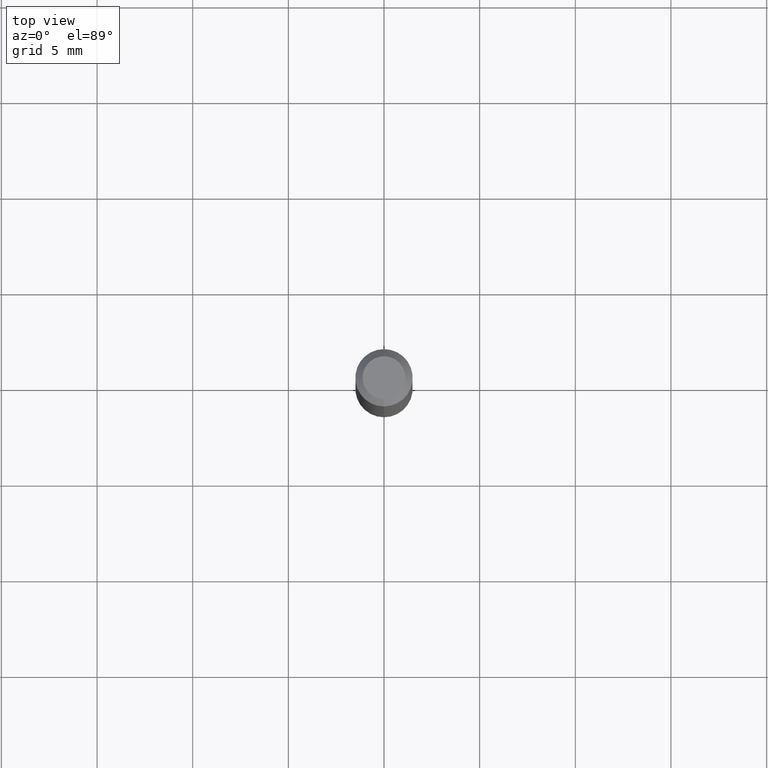
[diagram: clean part render]
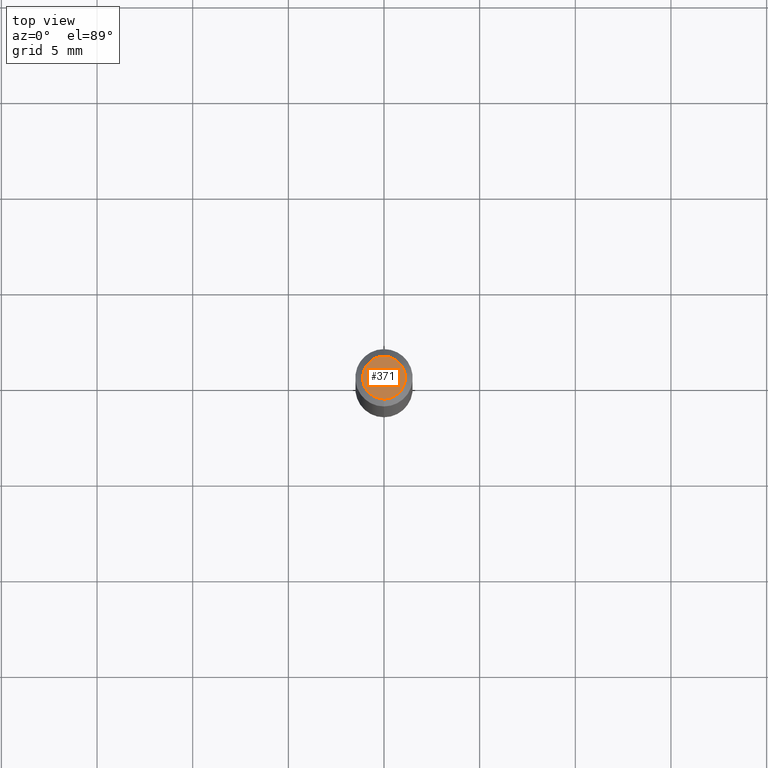
[diagram: same view with one face highlighted and labeled with its STEP entity id]
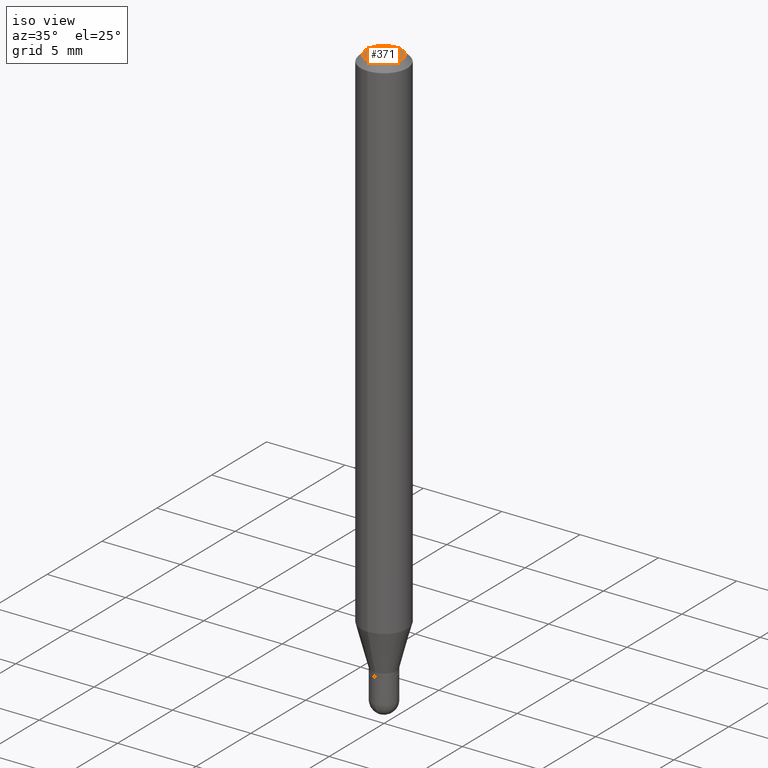
[diagram: same view with one face highlighted and labeled with its STEP entity id]
A machine part, top view. The second image highlights one B-rep face of the part: STEP entity #371.
A second angle (iso view) of the same face is appended — the face is thin or edge-on in the first view.
In plain terms, the highlighted planar face has unit normal (0, -0, -1).
Its self-contained STEP definition (entity closure, byte-faithful):
#28 = AXIS2_PLACEMENT_3D ( 'NONE', #284, #436, #493 ) ;
#30 = CARTESIAN_POINT ( 'NONE',  ( 3.599717260347271507E-16, 0.04404999999999999888, -1.776619958574267450E-16 ) ) ;
#41 = DIRECTION ( 'NONE',  ( -6.982962677686265133E-15, -1.000000000000000000, 3.491440589811561722E-15 ) ) ;
#90 = DIRECTION ( 'NONE',  ( -2.445497261081806566E-29, 3.491440589811561722E-15, 1.000000000000000000 ) ) ;
#113 = DIRECTION ( 'NONE',  ( 6.982962677686265922E-15, 1.000000000000000000, -3.491440589811561722E-15 ) ) ;
#159 = CIRCLE ( 'NONE', #339, 0.04404999999999999888 ) ;
#190 = CARTESIAN_POINT ( 'NONE',  ( 3.075995059520799729E-16, 0.04404999999999999888, -1.657299769193130162E-16 ) ) ;
#192 = PLANE ( 'NONE',  #476 ) ;
#202 = EDGE_LOOP ( 'NONE', ( #426, #372 ) ) ;
#273 = EDGE_CURVE ( 'NONE', #356, #375, #159, .T. ) ;
#284 = CARTESIAN_POINT ( 'NONE',  ( 5.835943926466671869E-46, -8.331987047786100818E-32, -2.386403787622744840E-17 ) ) ;
#339 = AXIS2_PLACEMENT_3D ( 'NONE', #439, #90, #41 ) ;
#346 = DIRECTION ( 'NONE',  ( 2.445497261081806566E-29, -3.491440589811561722E-15, -1.000000000000000000 ) ) ;
#356 = VERTEX_POINT ( 'NONE', #30 ) ;
#371 = ADVANCED_FACE ( 'NONE', ( #385 ), #192, .F. ) ;
#372 = ORIENTED_EDGE ( 'NONE', *, *, #414, .T. ) ;
#375 = VERTEX_POINT ( 'NONE', #504 ) ;
#385 = FACE_OUTER_BOUND ( 'NONE', #202, .T. ) ;
#414 = EDGE_CURVE ( 'NONE', #375, #356, #497, .T. ) ;
#426 = ORIENTED_EDGE ( 'NONE', *, *, #273, .T. ) ;
#436 = DIRECTION ( 'NONE',  ( -2.445497261081806566E-29, 3.491440589811561722E-15, 1.000000000000000000 ) ) ;
#439 = CARTESIAN_POINT ( 'NONE',  ( 5.835943926466671869E-46, -8.331987047786100818E-32, -2.386403787622744840E-17 ) ) ;
#476 = AXIS2_PLACEMENT_3D ( 'NONE', #190, #346, #113 ) ;
#493 = DIRECTION ( 'NONE',  ( -6.982962677686265133E-15, -1.000000000000000000, 3.491440589811561722E-15 ) ) ;
#497 = CIRCLE ( 'NONE', #28, 0.04404999999999999888 ) ;
#504 = CARTESIAN_POINT ( 'NONE',  ( -3.536586717851222218E-16, -0.04404999999999999888, 1.299339201049718297E-16 ) ) ;